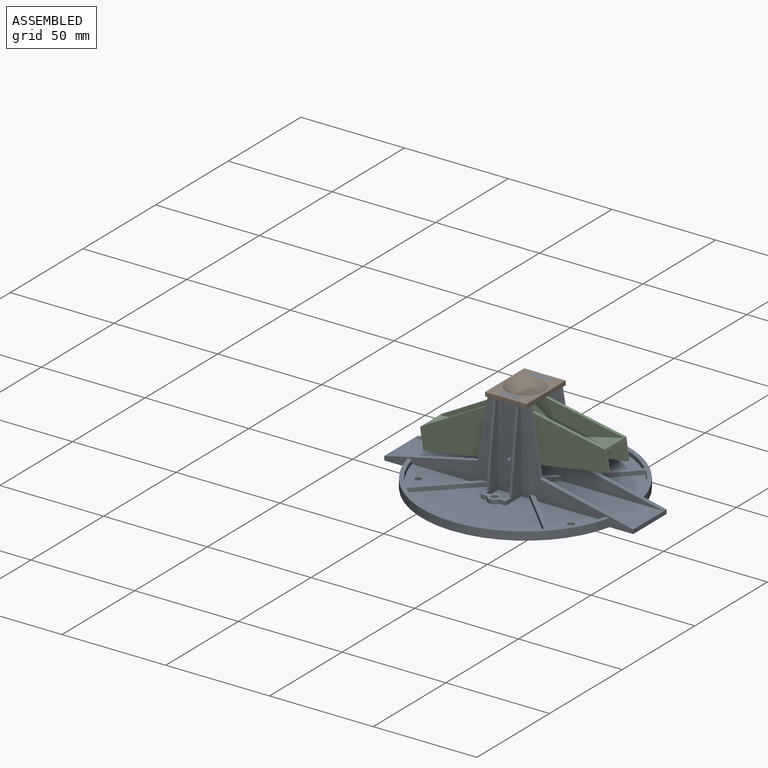
[diagram: assembled view]
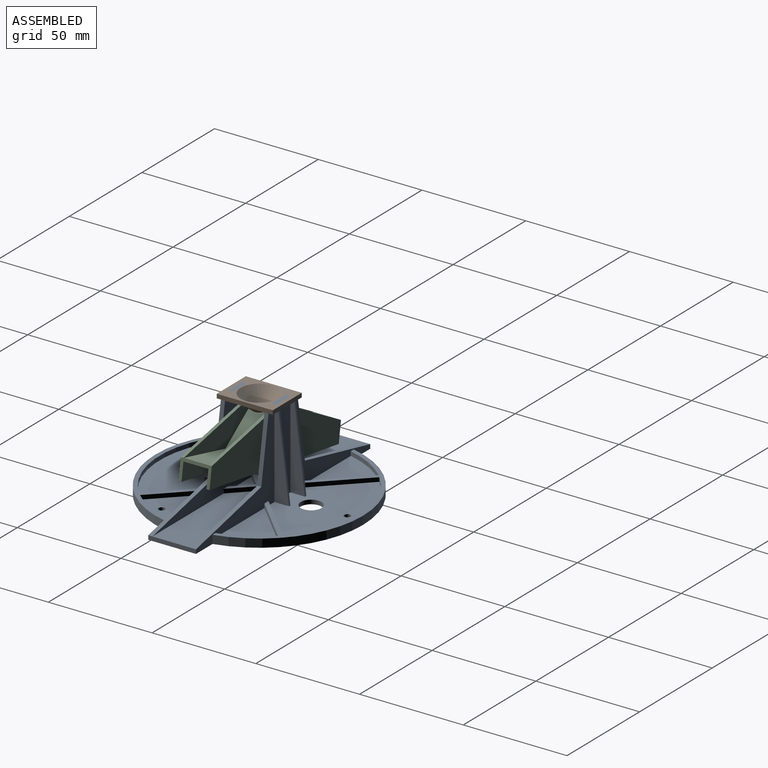
[diagram: assembled view, second angle]
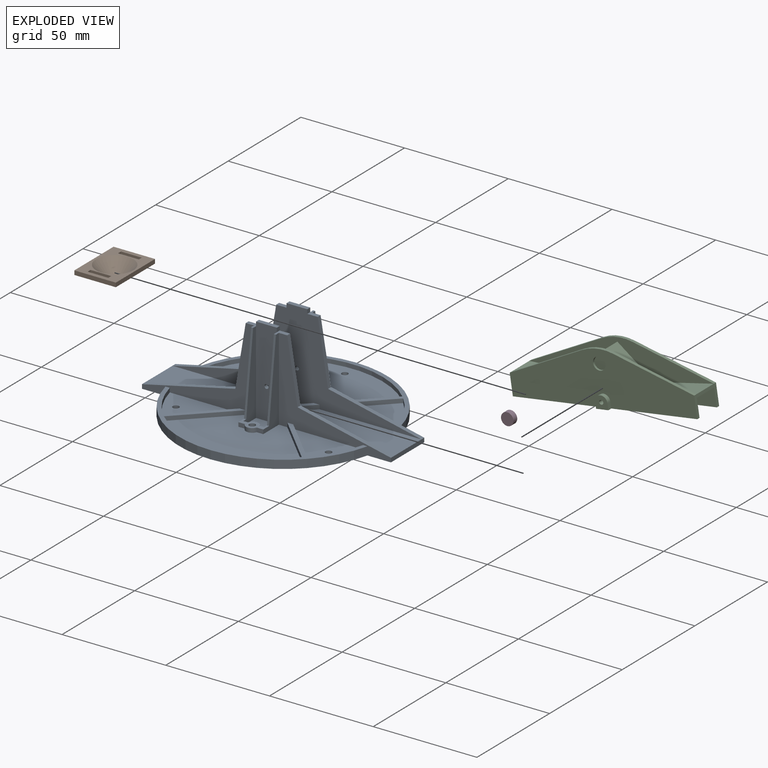
[diagram: exploded view]
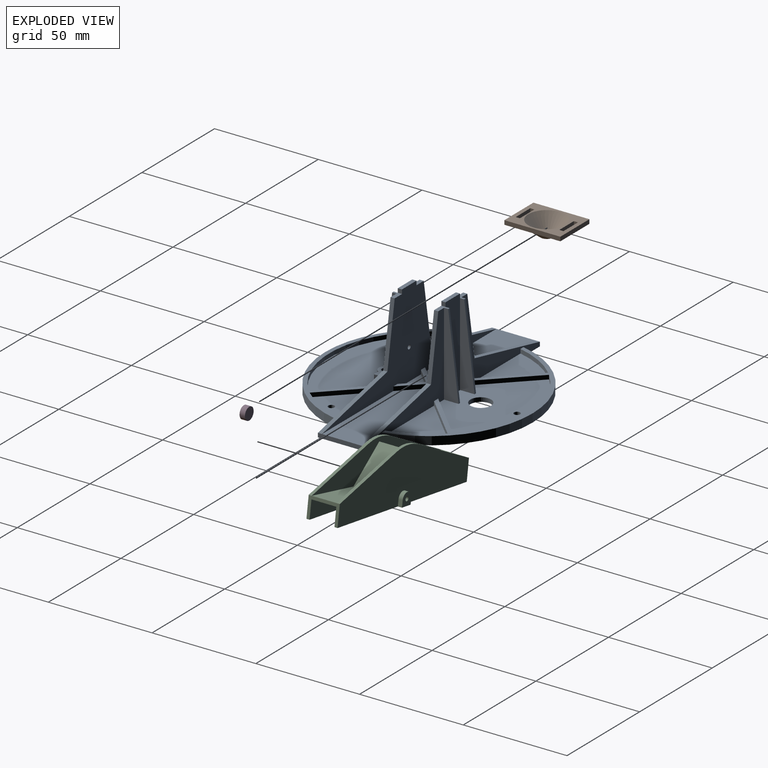
[diagram: exploded view, second angle]
ASSEMBLY  parts=4 mates=3
PART A: 93 faces, bbox 120x100x44 mm
  f0: plane 10x8.75mm, normal (0,0,1), area 79.2mm2, adj f1,f40,f41,f42,f83,f92
  f1: plane 42x10mm, normal (0,-1,0), area 416.9mm2, adj f0,f64,f65,f66,f80,f83,f92
  f2: plane 42x10mm, normal (0,1,0), area 416.9mm2, adj f4,f74,f75,f76,f79,f86,f89
  f3: plane 54x42mm, normal (0,1,0), area 522.9mm2, adj f4,f9,f20,f26,f35,f36,f44,f47
  f4: plane 66.45x36.5mm, normal (0,0,1), area 1513.2mm2, adj f2,f3,f25,f33,f34,f44,f45,f57
  f5: plane 66.45x36.5mm, normal (0,0,1), area 1475.6mm2, adj f6,f29,f37,f38,f39,f53,f54,f56
  f6: plane 54x42mm, normal (0,-1,0), area 522.9mm2, adj f5,f14,f27,f28,f36,f51,f52,f56
  f7: plane 21.83x19mm, normal (0,0,1), area 103.5mm2, adj f10,f11,f12,f13,f16,f17,f18,f19
  f8: plane 33.69x21.73mm, normal (0,0,1), area 393mm2, adj f25,f49,f50
  f9: plane 33.69x21.73mm, normal (0,0,1), area 393mm2, adj f3,f47,f48
  f10: plane 8.09x8.09mm, normal (-0.71,0.71,0), area 22.9mm2, adj f7,f11,f24,f69
  f11: plane 8.09x8.09mm, normal (0.71,0.71,0), area 22.9mm2, adj f7,f10,f24,f69
  f12: plane 9.5x9.5mm, normal (0.71,-0.71,0), area 26.9mm2, adj f7,f16,f22,f69
  f13: plane 9.5x9.5mm, normal (-0.71,-0.71,0), area 26.9mm2, adj f7,f17,f21,f69
  f14: plane 33.69x21.73mm, normal (0,0,1), area 385.9mm2, adj f6,f31,f51,f52
  f15: plane 33.69x21.73mm, normal (0,0,1), area 385.9mm2, adj f29,f32,f46,f55
  f16: plane 9.5x9.5mm, normal (0.71,0.71,0), area 26.9mm2, adj f7,f12,f22,f59
  f17: plane 9.5x9.5mm, normal (-0.71,0.71,0), area 26.9mm2, adj f7,f13,f21,f59
  f18: plane 8.09x8.09mm, normal (-0.71,-0.71,0), area 22.9mm2, adj f7,f19,f23,f59
  f19: plane 8.09x8.09mm, normal (0.71,-0.71,0), area 22.9mm2, adj f7,f18,f23,f59
  f20: plane 97.32x38.5mm, normal (0,0,1), area 388.4mm2, adj f3,f25,f26,f44,f45,f47,f48,f49
  f21: plane 58.59x19mm, normal (0,0,1), area 1022.9mm2, adj f13,f17,f27,f59,f69
  f22: plane 58.59x19mm, normal (0,0,1), area 1022.9mm2, adj f12,f16,f35,f59,f69
  f23: plane 16.17x8.09mm, normal (0,0,1), area 65.4mm2, adj f18,f19,f59
  f24: plane 16.17x8.09mm, normal (0,0,1), area 65.4mm2, adj f10,f11,f69
  f25: plane 54x42mm, normal (0,1,0), area 522.9mm2, adj f4,f8,f20,f26,f27,f36,f45,f49
  f26: cylinder r=50mm len=97.32mm, axis (0,0,-1), area 535.5mm2, adj f3,f20,f25,f36
  f27: plane 23x2mm, normal (-1,0,0), area 46mm2, adj f6,f21,f25,f36,f60,f71
  f28: cylinder r=50mm len=97.32mm, axis (0,0,-1), area 535.5mm2, adj f6,f29,f36,f58
  f29: plane 54x42mm, normal (0,-1,0), area 522.9mm2, adj f5,f15,f28,f35,f36,f46,f53,f55
  f30: cylinder r=1.5mm len=4mm, axis (0,0,-1), area 37.7mm2, adj f36,f43
  f31: cylinder r=1.5mm len=3mm, axis (0,0,-1), area 18.8mm2, adj f14,f36
  f32: cylinder r=1.5mm len=3mm, axis (0,0,-1), area 18.8mm2, adj f15,f36
  f33: cylinder r=1.5mm len=3mm, axis (0,0,-1), area 18.8mm2, adj f4,f36
  f34: cylinder r=5mm len=10mm, axis (0,0,-1), area 62.8mm2, adj f4,f36
  f35: plane 23x2mm, normal (1,0,0), area 46mm2, adj f3,f22,f29,f36,f61,f70
  f36: plane 120x100mm, normal (0,0,-1), area 8227.6mm2, adj f3,f6,f25,f26,f27,f28,f29,f30
  f37: plane 3.17x2mm, normal (0,-1,0), area 6.3mm2, adj f5,f38,f43,f91
  f38: cylinder r=3mm len=5.66mm, axis (0,0,-1), area 14.8mm2, adj f5,f37,f39,f43
  f39: plane 3.17x2mm, normal (0,-1,0), area 6.3mm2, adj f5,f38,f43,f82
  f40: plane 2.17x2mm, normal (0,1,0), area 4.3mm2, adj f0,f41,f43,f83
  f41: cylinder r=3mm len=5.66mm, axis (0,0,-1), area 14.8mm2, adj f0,f40,f42,f43
  f42: plane 2.17x2mm, normal (0,1,0), area 4.3mm2, adj f0,f41,f43,f92
  f43: plane 12x6mm, normal (0,0,1), area 37.4mm2, adj f30,f37,f38,f39,f40,f41,f42,f81
  f44: plane 23.14x23.14mm, normal (-0.71,0.71,0), area 65.5mm2, adj f3,f4,f20,f57
  f45: plane 23.14x23.14mm, normal (0.71,0.71,0), area 65.5mm2, adj f4,f20,f25,f57
  f46: plane 21.73x21.73mm, normal (0.71,0.71,0), area 61.5mm2, adj f15,f29,f55,f58
  f47: plane 21.73x21.73mm, normal (0.71,-0.71,0), area 61.5mm2, adj f3,f9,f20,f48
  f48: cylinder r=48mm len=21.73mm, axis (0,0,-1), area 50.2mm2, adj f3,f9,f20,f47
  f49: cylinder r=48mm len=21.73mm, axis (0,0,-1), area 50.2mm2, adj f8,f20,f25,f50
  f50: plane 21.73x21.73mm, normal (-0.71,-0.71,0), area 61.5mm2, adj f8,f20,f25,f49
  f51: plane 21.73x21.73mm, normal (-0.71,0.71,0), area 61.5mm2, adj f6,f14,f52,f58
  f52: cylinder r=48mm len=21.73mm, axis (0,0,-1), area 50.2mm2, adj f6,f14,f51,f58
  f53: plane 23.14x23.14mm, normal (-0.71,-0.71,0), area 65.5mm2, adj f5,f29,f54,f58
  f54: cylinder r=48mm len=66.45mm, axis (0,0,-1), area 146.8mm2, adj f5,f53,f56,f58
  f55: cylinder r=48mm len=21.73mm, axis (0,0,-1), area 50.2mm2, adj f15,f29,f46,f58
  f56: plane 23.14x23.14mm, normal (0.71,-0.71,0), area 65.5mm2, adj f5,f6,f54,f58
  f57: cylinder r=48mm len=66.45mm, axis (0,0,-1), area 146.8mm2, adj f4,f20,f44,f45
  f58: plane 97.32x38.5mm, normal (0,0,1), area 388.4mm2, adj f6,f28,f29,f46,f51,f52,f53,f54
  f59: plane 120x42mm, normal (0,1,0), area 1505.5mm2, adj f7,f16,f17,f18,f19,f21,f22,f23
  f60: plane 45x10mm, normal (-0.22,0,0.98), area 92.2mm2, adj f6,f27,f59,f68
  f61: plane 45x10mm, normal (0.22,0,0.98), area 92.2mm2, adj f29,f35,f59,f62
  f62: plane 30x5mm, normal (0.99,0,0.16), area 60.8mm2, adj f29,f59,f61,f63
  f63: plane 5x4mm, normal (0,0,1), area 12mm2, adj f29,f59,f62,f64,f81,f82,f83
  f64: plane 2x2mm, normal (1,0,0), area 4mm2, adj f1,f59,f63,f65
  f65: plane 10x2mm, normal (0,0,1), area 20mm2, adj f1,f59,f64,f66
  f66: plane 2x2mm, normal (-1,0,0), area 4mm2, adj f1,f59,f65,f67
  f67: plane 5x4mm, normal (0,0,1), area 12mm2, adj f6,f59,f66,f68,f90,f91,f92
  f68: plane 30x5mm, normal (-0.99,0,0.16), area 60.8mm2, adj f6,f59,f60,f67
  f69: plane 120x42mm, normal (0,-1,0), area 1505.5mm2, adj f7,f10,f11,f12,f13,f21,f22,f24
  f70: plane 45x10mm, normal (0.22,0,0.98), area 92.2mm2, adj f3,f35,f69,f78
  f71: plane 45x10mm, normal (-0.22,0,0.98), area 92.2mm2, adj f25,f27,f69,f72
  f72: plane 30x5mm, normal (-0.99,0,0.16), area 60.8mm2, adj f25,f69,f71,f73
  f73: plane 5x4mm, normal (0,0,1), area 12mm2, adj f25,f69,f72,f74,f87,f88,f89
  f74: plane 2x2mm, normal (-1,0,0), area 4mm2, adj f2,f69,f73,f75
  f75: plane 10x2mm, normal (0,0,1), area 20mm2, adj f2,f69,f74,f76
  f76: plane 2x2mm, normal (1,0,0), area 4mm2, adj f2,f69,f75,f77
  f77: plane 5x4mm, normal (0,0,1), area 12mm2, adj f3,f69,f76,f78,f84,f85,f86
  f78: plane 30x5mm, normal (0.99,0,0.16), area 60.8mm2, adj f3,f69,f70,f77
  f79: cylinder r=1mm len=2mm, axis (0,-1,0), area 12.6mm2, adj f2,f69
  f80: cylinder r=1mm len=2mm, axis (0,-1,0), area 12.6mm2, adj f1,f59
  f81: plane 38x4.75mm, normal (0,-0.99,0.12), area 38.3mm2, adj f43,f63,f82,f83
  f82: plane 40x10.75mm, normal (1,0,0), area 187.8mm2, adj f5,f29,f39,f43,f63,f81
  f83: plane 40x8.75mm, normal (-1,0,0), area 183.8mm2, adj f0,f1,f40,f43,f63,f81
  f84: plane 40x5mm, normal (0,0.99,0.12), area 40.3mm2, adj f4,f77,f85,f86
  f85: plane 40x7mm, normal (1,0,0), area 180mm2, adj f3,f4,f77,f84
  f86: plane 40x7mm, normal (-1,0,0), area 180mm2, adj f2,f4,f77,f84
  f87: plane 40x5mm, normal (0,0.99,0.12), area 40.3mm2, adj f4,f73,f88,f89
  f88: plane 40x7mm, normal (-1,0,0), area 180mm2, adj f4,f25,f73,f87
  f89: plane 40x7mm, normal (1,0,0), area 180mm2, adj f2,f4,f73,f87
  f90: plane 38x4.75mm, normal (0,-0.99,0.12), area 38.3mm2, adj f43,f67,f91,f92
  f91: plane 40x10.75mm, normal (-1,0,0), area 187.8mm2, adj f5,f6,f37,f43,f67,f90
  f92: plane 40x8.75mm, normal (1,0,0), area 183.8mm2, adj f0,f1,f42,f43,f67,f90
PART B: 17 faces, bbox 27x20x7 mm
  f0: plane 27x2mm, normal (0,1,0), area 54mm2, adj f1,f11,f12,f13
  f1: plane 20x2mm, normal (-1,0,0), area 40mm2, adj f0,f2,f12,f13
  f2: plane 27x2mm, normal (0,-1,0), area 54mm2, adj f1,f11,f12,f13
  f3: plane 10x2mm, normal (1,0,0), area 20mm2, adj f4,f9,f12,f13
  f4: plane 2x2mm, normal (0,-1,0), area 4mm2, adj f3,f5,f12,f13
  f5: plane 10x2mm, normal (-1,0,0), area 20mm2, adj f4,f9,f12,f13
  f6: plane 10x2mm, normal (1,0,0), area 20mm2, adj f7,f10,f12,f13
  f7: plane 2x2mm, normal (0,-1,0), area 4mm2, adj f6,f8,f12,f13
  f8: plane 10x2mm, normal (-1,0,0), area 20mm2, adj f7,f10,f12,f13
  f9: plane 2x2mm, normal (0,1,0), area 4mm2, adj f3,f5,f12,f13
  f10: plane 2x2mm, normal (0,1,0), area 4mm2, adj f6,f8,f12,f13
  f11: plane 20x2mm, normal (1,0,0), area 40mm2, adj f0,f2,f12,f13
  f12: plane 27x20mm, normal (0,0,1), area 216.5mm2, adj f0,f1,f2,f3,f4,f5,f6,f7
  f13: plane 27x20mm, normal (0,0,-1), area 245.5mm2, adj f0,f1,f2,f3,f4,f5,f6,f7
  f14: plane 6x6mm, normal (0,0,1), area 8.6mm2, adj f15,f16
  f15: cone r=9.5mm half-angle=52.4deg, axis (0,0,-1), area 322mm2, adj f12,f14
  f16: cone r=2.5mm half-angle=42.9deg, axis (0,0,-1), area 345.1mm2, adj f13,f14
PART C: 36 faces, bbox 90x19x25 mm
  f0: plane 90x25mm, normal (0,-1,0), area 1571.2mm2, adj f3,f7,f21,f22,f23,f24,f26,f28
  f1: plane 90x17.45mm, normal (0,-1,0), area 639.4mm2, adj f4,f5,f6,f15,f16,f17,f18
  f2: plane 90x3.5mm, normal (0,0,-1), area 147mm2, adj f3,f7,f9,f10,f33,f34,f35
  f3: plane 15x10mm, normal (1,0,0), area 48.1mm2, adj f0,f2,f4,f9,f10,f14,f15,f19
  f4: plane 37.46x13.67mm, normal (0.34,0,0.94), area 59.8mm2, adj f1,f3,f5,f10
  f5: cylinder r=22mm len=15.08mm, axis (0,1,0), area 23.1mm2, adj f1,f4,f6,f10
  f6: plane 37.46x13.67mm, normal (-0.34,0,0.94), area 59.8mm2, adj f1,f5,f7,f10
  f7: plane 15x10mm, normal (-1,0,0), area 48.1mm2, adj f0,f2,f6,f9,f10,f11,f18,f19
  f8: cylinder r=1mm len=3.5mm, axis (0,1,0), area 22mm2, adj f9,f35
  f9: plane 90x20.89mm, normal (0,-1,0), area 835mm2, adj f2,f3,f7,f8,f11,f12,f13,f14
  f10: plane 90x25mm, normal (0,1,0), area 1599.4mm2, adj f2,f3,f4,f5,f6,f7,f32,f33
  f11: plane 30x12mm, normal (-0.08,0,-1), area 361.2mm2, adj f7,f9,f12,f19
  f12: plane 15x14.89mm, normal (0.7,0,-0.71), area 253.6mm2, adj f9,f11,f13,f19
  f13: plane 15x14.89mm, normal (-0.7,0,-0.71), area 253.6mm2, adj f9,f12,f14,f19
  f14: plane 30x12mm, normal (0.08,0,-1), area 361.2mm2, adj f3,f9,f13,f19
  f15: plane 29.43x12mm, normal (-0.08,0,1), area 354.4mm2, adj f1,f3,f16,f20
  f16: plane 15.57x15.45mm, normal (0.7,0,0.71), area 263.2mm2, adj f1,f15,f17,f20
  f17: plane 15.57x15.45mm, normal (-0.7,0,0.71), area 263.2mm2, adj f1,f16,f18,f20
  f18: plane 29.43x12mm, normal (0.08,0,1), area 354.4mm2, adj f1,f7,f17,f20
  f19: plane 90x20.89mm, normal (0,1,0), area 835mm2, adj f3,f7,f11,f12,f13,f14,f22,f25
  f20: plane 90x17.45mm, normal (0,1,0), area 639.4mm2, adj f15,f16,f17,f18,f21,f23,f24
  f21: plane 37.46x13.67mm, normal (-0.34,0,0.94), area 59.8mm2, adj f0,f7,f20,f24
  f22: plane 90x3.5mm, normal (0,0,-1), area 147mm2, adj f0,f3,f7,f19,f29,f30,f31
  f23: plane 37.46x13.67mm, normal (0.34,0,0.94), area 59.8mm2, adj f0,f3,f20,f24
  f24: cylinder r=22mm len=15.08mm, axis (0,1,0), area 23.1mm2, adj f0,f20,f21,f23
  f25: cylinder r=1mm len=3.5mm, axis (0,1,0), area 22mm2, adj f19,f31
  f26: cylinder r=3mm len=6mm, axis (0,-1,0), area 18.8mm2, adj f0,f27
  f27: plane 6x6mm, normal (0,-1,0), area 28.3mm2, adj f26
  f28: cylinder r=3mm len=6mm, axis (0,1,0), area 18.8mm2, adj f0,f29,f30,f31
  f29: plane 3x2mm, normal (-1,0,0), area 6mm2, adj f0,f22,f28,f31
  f30: plane 3x2mm, normal (1,0,0), area 6mm2, adj f0,f22,f28,f31
  f31: plane 6x6mm, normal (0,-1,0), area 29mm2, adj f22,f25,f28,f29,f30
  f32: cylinder r=3mm len=6mm, axis (0,-1,0), area 18.8mm2, adj f10,f33,f34,f35
  f33: plane 3x2mm, normal (1,0,0), area 6mm2, adj f2,f10,f32,f35
  f34: plane 3x2mm, normal (-1,0,0), area 6mm2, adj f2,f10,f32,f35
  f35: plane 6x6mm, normal (0,1,0), area 29mm2, adj f2,f8,f32,f33,f34
PART D: 3 faces, bbox 6x2.6x6 mm
  f0: cylinder r=3mm len=6mm, axis (0,1,0), area 49mm2, adj f1,f2
  f1: plane 6x6mm, normal (0,-1,0), area 28.3mm2, adj f0
  f2: plane 6x6mm, normal (0,1,0), area 28.3mm2, adj f0
PLACE A t=(-26.05,13.42,10.69)mm fixed
PLACE B rot(axis=(0.71,0.71,0),180deg) t=(-26.05,13.42,54.69)mm
PLACE C rot(axis=(0,-1,0),8.8deg) t=(-25.59,20.92,24.72)mm
PLACE D rot(axis=(0,-1,0),8.8deg) t=(-25.59,20.92,24.72)mm
MATE fastened B.f10 <-> A.f74  axis (1,0,0) through (-31.05,23.92,53.69)mm
MATE fastened D.f0 <-> C.f26  axis (0,1,0) through (-28.45,6.92,43.17)mm
MATE revolute C.f25 <-> A.f79  axis (0,-1,0) through (-26.05,3.92,27.69)mm
